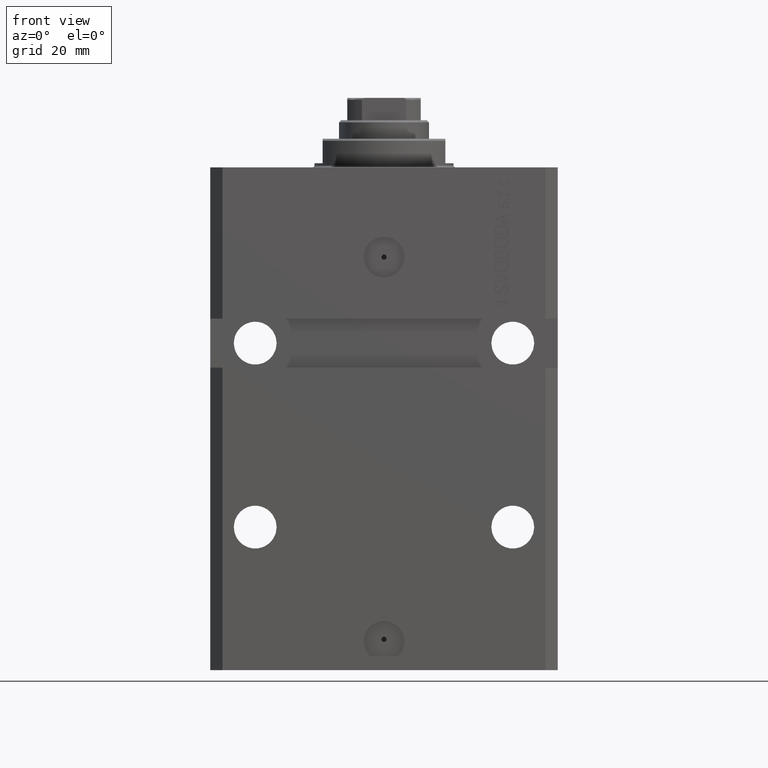
[diagram: clean part render]
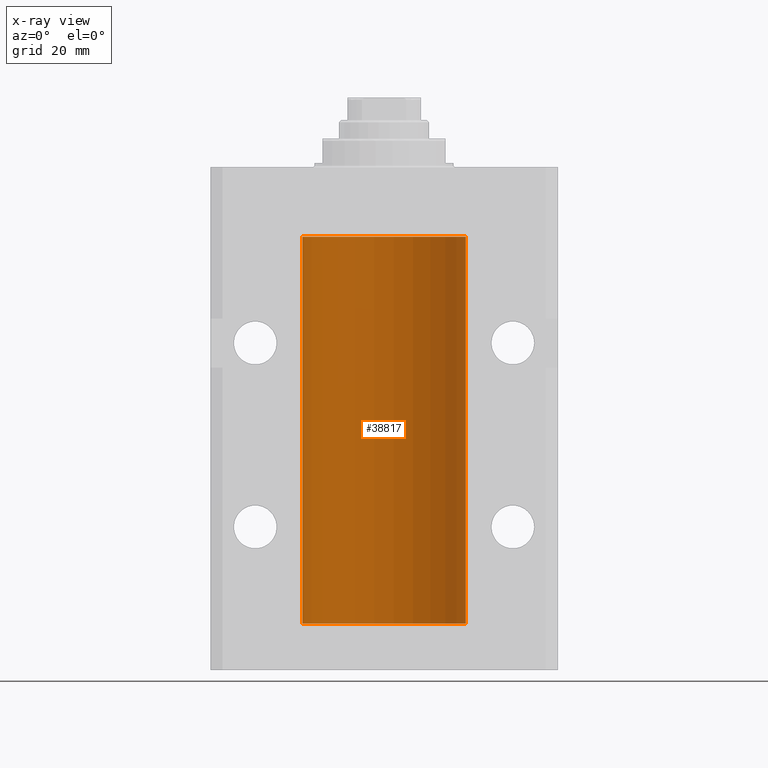
[diagram: x-ray — body ghosted, one internal face saturated and labeled with its STEP entity id]
A machine part, front view, then the same camera in x-ray: the body is ghosted and one INTERNAL B-rep face — a face not visible from any outside direction — is saturated and labeled: STEP entity #38817.
In plain terms, the highlighted cylindrical surface (partial cylindrical patch) has radius 20 mm, axis along (0, 0, 1).
Its self-contained STEP definition (entity closure, byte-faithful):
#347 = CYLINDRICAL_SURFACE ( 'NONE', #26180, 20.00000000000000000 ) ;
#2330 = DIRECTION ( 'NONE',  ( -0.000000000000000000, -0.000000000000000000, 1.000000000000000000 ) ) ;
#2722 = CIRCLE ( 'NONE', #19023, 20.00000000000000000 ) ;
#3539 = CARTESIAN_POINT ( 'NONE',  ( 20.00000000000000000, 0.000000000000000000, -111.5999999999999943 ) ) ;
#4289 = CARTESIAN_POINT ( 'NONE',  ( -20.00000000000000000, 2.449293598294706513E-15, -17.00000000000000000 ) ) ;
#4834 = AXIS2_PLACEMENT_3D ( 'NONE', #8107, #46041, #35084 ) ;
#5064 = VERTEX_POINT ( 'NONE', #4289 ) ;
#5717 = CARTESIAN_POINT ( 'NONE',  ( -19.99999999999999289, 0.08259581631025748882, -108.3749999999999716 ) ) ;
#6198 = CARTESIAN_POINT ( 'NONE',  ( -20.00000000000010303, 3.580159290815452135E-13, -109.6250000000033253 ) ) ;
#6694 = VERTEX_POINT ( 'NONE', #3539 ) ;
#8056 = ORIENTED_EDGE ( 'NONE', *, *, #8095, .T. ) ;
#8095 = EDGE_CURVE ( 'NONE', #32096, #5064, #25795, .T. ) ;
#8107 = CARTESIAN_POINT ( 'NONE',  ( 0.000000000000000000, 0.000000000000000000, -17.00000000000000000 ) ) ;
#9300 = LINE ( 'NONE', #24121, #12261 ) ;
#9558 = VERTEX_POINT ( 'NONE', #30140 ) ;
#9611 = EDGE_CURVE ( 'NONE', #6694, #32096, #47923, .T. ) ;
#9651 = CARTESIAN_POINT ( 'NONE',  ( -20.00000000000000000, 2.449293598294706513E-15, -111.5999999999999943 ) ) ;
#10299 = ORIENTED_EDGE ( 'NONE', *, *, #33325, .F. ) ;
#10812 = CARTESIAN_POINT ( 'NONE',  ( -19.99023380173166231, 0.6249420416828462832, -23.83670793056396064 ) ) ;
#11881 = VECTOR ( 'NONE', #33307, 1000.000000000000000 ) ;
#12261 = VECTOR ( 'NONE', #31904, 1000.000000000000000 ) ;
#12355 = ORIENTED_EDGE ( 'NONE', *, *, #9611, .T. ) ;
#13521 = EDGE_CURVE ( 'NONE', #17428, #24756, #28338, .T. ) ;
#13740 = CARTESIAN_POINT ( 'NONE',  ( -19.99766197842594906, 0.3150331617867563327, -108.4540207010250299 ) ) ;
#14703 = LINE ( 'NONE', #22234, #34471 ) ;
#14937 = CARTESIAN_POINT ( 'NONE',  ( -19.99023018003212471, 0.6250578794725500931, -24.16284809704970371 ) ) ;
#15762 = EDGE_LOOP ( 'NONE', ( #19354, #36186, #12355, #8056, #10299, #21248, #31195, #29232 ) ) ;
#17428 = VERTEX_POINT ( 'NONE', #30165 ) ;
#17648 = CARTESIAN_POINT ( 'NONE',  ( -20.00000000000000000, -2.867584836844214272E-15, -23.37500000000000000 ) ) ;
#19023 = AXIS2_PLACEMENT_3D ( 'NONE', #39500, #28548, #43379 ) ;
#19354 = ORIENTED_EDGE ( 'NONE', *, *, #40211, .F. ) ;
#20547 = CARTESIAN_POINT ( 'NONE',  ( -19.99947377218718358, 0.1636439183262759223, -108.3912636400465459 ) ) ;
#21248 = ORIENTED_EDGE ( 'NONE', *, *, #24039, .T. ) ;
#21752 = DIRECTION ( 'NONE',  ( 1.000000000000000000, 0.000000000000000000, 0.000000000000000000 ) ) ;
#21773 = B_SPLINE_CURVE_WITH_KNOTS ( 'NONE', 3,
 ( #17648, #36580, #25636, #32697, #29054, #25875, #10812, #14937, #43898, #33409, #22232, #32938 ),
 .UNSPECIFIED., .F., .F.,
 ( 4, 2, 2, 2, 2, 4 ),
 ( 5.848927291235706941E-19, 0.0002442693137305304075, 0.0004885386274610601645, 0.0009770772549221123059, 0.001465615882383164339, 0.001954154509844215938 ),
 .UNSPECIFIED. ) ;
#22232 = CARTESIAN_POINT ( 'NONE',  ( -20.00000000000000000, 0.1631688615953320320, -24.62499999999985434 ) ) ;
#22234 = CARTESIAN_POINT ( 'NONE',  ( -20.00000000000000000, 2.449293598294706513E-15, -111.5999999999999943 ) ) ;
#22238 = DIRECTION ( 'NONE',  ( -0.000000000000000000, -0.000000000000000000, 1.000000000000000000 ) ) ;
#24039 = EDGE_CURVE ( 'NONE', #9558, #32805, #21773, .T. ) ;
#24121 = CARTESIAN_POINT ( 'NONE',  ( -20.00000000000000000, 2.449293598294706513E-15, -111.5999999999999943 ) ) ;
#24688 = CARTESIAN_POINT ( 'NONE',  ( -19.99253506710754991, 0.5587120480776772702, -109.3251162083024894 ) ) ;
#24756 = VERTEX_POINT ( 'NONE', #35708 ) ;
#24913 = CARTESIAN_POINT ( 'NONE',  ( -19.99023380173165876, 0.6249420416828411762, -108.8367079305639322 ) ) ;
#25214 = VERTEX_POINT ( 'NONE', #34524 ) ;
#25636 = CARTESIAN_POINT ( 'NONE',  ( -19.99947377218718714, 0.1636439183262877461, -23.39126364004656011 ) ) ;
#25795 = CIRCLE ( 'NONE', #4834, 20.00000000000000000 ) ;
#25875 = CARTESIAN_POINT ( 'NONE',  ( -19.99256581701871482, 0.5573276956902001311, -23.67348565770948809 ) ) ;
#26180 = AXIS2_PLACEMENT_3D ( 'NONE', #44853, #22238, #21752 ) ;
#28115 = LINE ( 'NONE', #9651, #39985 ) ;
#28330 = CARTESIAN_POINT ( 'NONE',  ( -19.99256581701871838, 0.5573276956901952461, -108.6734856577094916 ) ) ;
#28338 = B_SPLINE_CURVE_WITH_KNOTS ( 'NONE', 3,
 ( #39035, #5717, #20547, #13740, #32454, #28330, #24913, #43167, #24688, #47298, #39523, #6198 ),
 .UNSPECIFIED., .F., .F.,
 ( 4, 2, 2, 2, 2, 4 ),
 ( 1.555867690894744095E-18, 0.0002442693137305176681, 0.0004885386274610337099, 0.0009770772549220949586, 0.001465615882383156099, 0.001954154509844217673 ),
 .UNSPECIFIED. ) ;
#28548 = DIRECTION ( 'NONE',  ( 0.000000000000000000, 0.000000000000000000, 1.000000000000000000 ) ) ;
#29054 = CARTESIAN_POINT ( 'NONE',  ( -19.99638934703457593, 0.3843678041337688644, -23.50046362978100944 ) ) ;
#29232 = ORIENTED_EDGE ( 'NONE', *, *, #13521, .T. ) ;
#30011 = FACE_OUTER_BOUND ( 'NONE', #15762, .T. ) ;
#30140 = CARTESIAN_POINT ( 'NONE',  ( -20.00000000000000000, -2.867584836844214272E-15, -23.37500000000000000 ) ) ;
#30165 = CARTESIAN_POINT ( 'NONE',  ( -20.00000000000000000, -1.494965790691426527E-14, -108.3750000000000000 ) ) ;
#31195 = ORIENTED_EDGE ( 'NONE', *, *, #32492, .F. ) ;
#31904 = DIRECTION ( 'NONE',  ( -0.000000000000000000, -0.000000000000000000, 1.000000000000000000 ) ) ;
#32096 = VERTEX_POINT ( 'NONE', #45190 ) ;
#32454 = CARTESIAN_POINT ( 'NONE',  ( -19.99638934703457593, 0.3843678041337614260, -108.5004636297810094 ) ) ;
#32492 = EDGE_CURVE ( 'NONE', #17428, #32805, #14703, .T. ) ;
#32697 = CARTESIAN_POINT ( 'NONE',  ( -19.99766197842594906, 0.3150331617867667688, -23.45402070102505476 ) ) ;
#32805 = VERTEX_POINT ( 'NONE', #44499 ) ;
#32938 = CARTESIAN_POINT ( 'NONE',  ( -20.00000000000010303, 3.580159278407742946E-13, -24.62500000000332889 ) ) ;
#33307 = DIRECTION ( 'NONE',  ( -0.000000000000000000, -0.000000000000000000, 1.000000000000000000 ) ) ;
#33325 = EDGE_CURVE ( 'NONE', #9558, #5064, #28115, .T. ) ;
#33409 = CARTESIAN_POINT ( 'NONE',  ( -19.99769349528941120, 0.3253804398728645242, -24.55855820727680339 ) ) ;
#34471 = VECTOR ( 'NONE', #40960, 1000.000000000000000 ) ;
#34524 = CARTESIAN_POINT ( 'NONE',  ( -20.00000000000000000, 2.449293598294706513E-15, -111.5999999999999943 ) ) ;
#34747 = EDGE_CURVE ( 'NONE', #6694, #25214, #2722, .T. ) ;
#35084 = DIRECTION ( 'NONE',  ( 1.000000000000000000, 0.000000000000000000, 0.000000000000000000 ) ) ;
#35708 = CARTESIAN_POINT ( 'NONE',  ( -20.00000000000010303, 3.580159290815452135E-13, -109.6250000000033253 ) ) ;
#36186 = ORIENTED_EDGE ( 'NONE', *, *, #34747, .F. ) ;
#36580 = CARTESIAN_POINT ( 'NONE',  ( -19.99999999999999645, 0.08259581631026780002, -23.37500000000000000 ) ) ;
#38817 = ADVANCED_FACE ( 'NONE', ( #30011 ), #347, .F. ) ;
#39035 = CARTESIAN_POINT ( 'NONE',  ( -20.00000000000000000, -1.494965790691426527E-14, -108.3750000000000000 ) ) ;
#39500 = CARTESIAN_POINT ( 'NONE',  ( 0.000000000000000000, 0.000000000000000000, -111.5999999999999943 ) ) ;
#39523 = CARTESIAN_POINT ( 'NONE',  ( -20.00000000000000355, 0.1631688615953337806, -109.6249999999998721 ) ) ;
#39985 = VECTOR ( 'NONE', #2330, 1000.000000000000000 ) ;
#40211 = EDGE_CURVE ( 'NONE', #25214, #24756, #9300, .T. ) ;
#40960 = DIRECTION ( 'NONE',  ( -0.000000000000000000, -0.000000000000000000, 1.000000000000000000 ) ) ;
#43167 = CARTESIAN_POINT ( 'NONE',  ( -19.99023018003212471, 0.6250578794725484277, -109.1628480970496895 ) ) ;
#43379 = DIRECTION ( 'NONE',  ( 1.000000000000000000, 0.000000000000000000, 0.000000000000000000 ) ) ;
#43898 = CARTESIAN_POINT ( 'NONE',  ( -19.99253506710754991, 0.5587120480776751608, -24.32511620830248589 ) ) ;
#44499 = CARTESIAN_POINT ( 'NONE',  ( -20.00000000000010303, 3.580159278407742946E-13, -24.62500000000332889 ) ) ;
#44853 = CARTESIAN_POINT ( 'NONE',  ( 0.000000000000000000, 0.000000000000000000, -111.5999999999999943 ) ) ;
#45190 = CARTESIAN_POINT ( 'NONE',  ( 20.00000000000000000, 0.000000000000000000, -17.00000000000000000 ) ) ;
#46041 = DIRECTION ( 'NONE',  ( 0.000000000000000000, 0.000000000000000000, 1.000000000000000000 ) ) ;
#47298 = CARTESIAN_POINT ( 'NONE',  ( -19.99769349528941476, 0.3253804398728720182, -109.5585582072768318 ) ) ;
#47923 = LINE ( 'NONE', #48153, #11881 ) ;
#48153 = CARTESIAN_POINT ( 'NONE',  ( 20.00000000000000000, 0.000000000000000000, -111.5999999999999943 ) ) ;